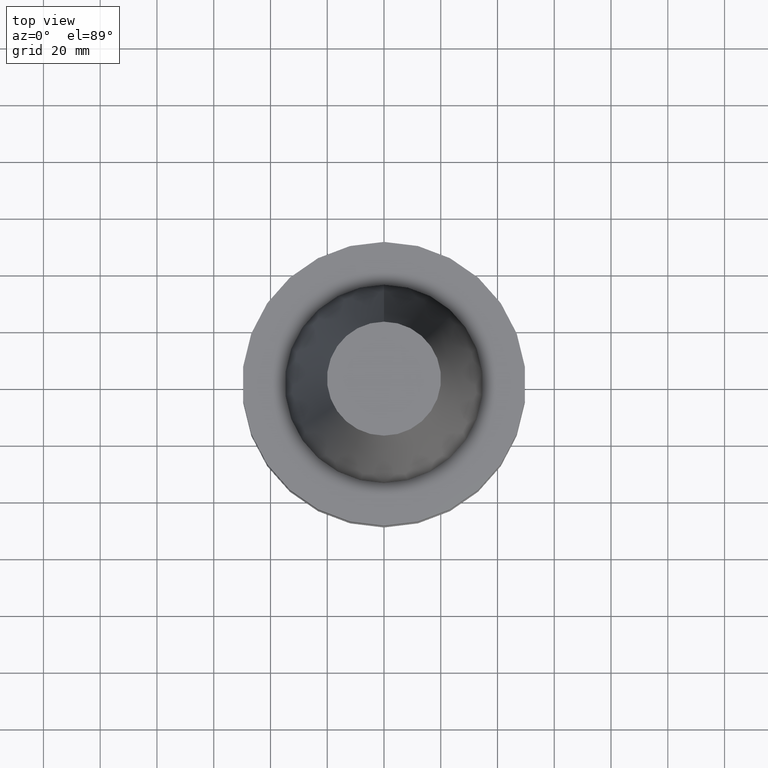
[diagram: clean part render]
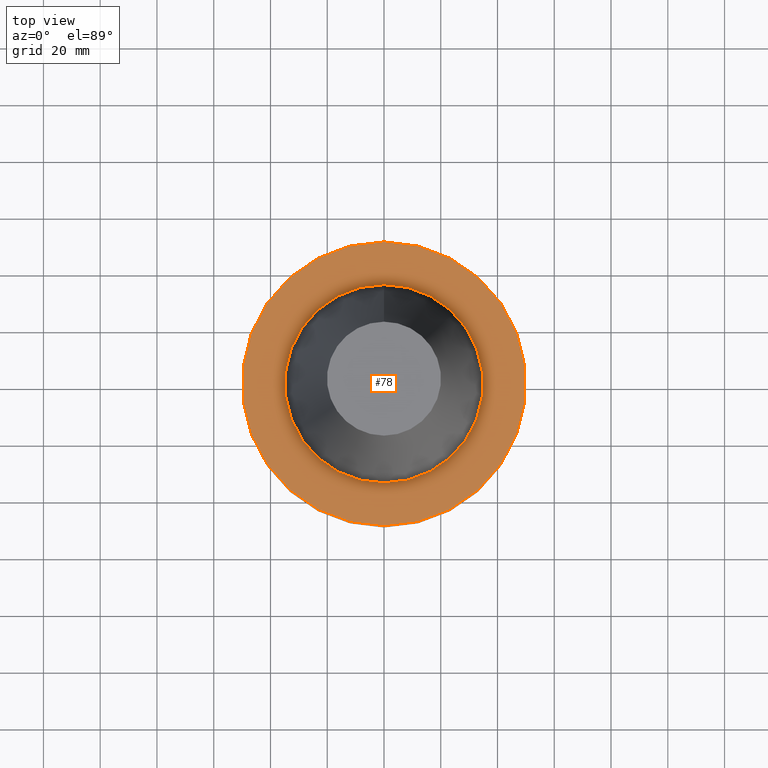
[diagram: same view with one face highlighted and labeled with its STEP entity id]
A machine part, top view. The second image highlights one B-rep face of the part: STEP entity #78.
In plain terms, the highlighted planar face has unit normal (-0, -0, 1).
Its self-contained STEP definition (entity closure, byte-faithful):
#78=ADVANCED_FACE('',(#99,#100),#101,.T.);
#99=FACE_OUTER_BOUND('',#142,.T.);
#100=FACE_BOUND('',#143,.T.);
#101=PLANE('',#144);
#142=EDGE_LOOP('',(#191));
#143=EDGE_LOOP('',(#192));
#144=AXIS2_PLACEMENT_3D('',#193,#194,#195);
#191=ORIENTED_EDGE('',*,*,#253,.F.);
#192=ORIENTED_EDGE('',*,*,#252,.T.);
#193=CARTESIAN_POINT('',(9.18485099360491E-017,42.4625,-1.49999999999996));
#194=DIRECTION('',(-6.12323399573677E-017,-4.26140557437139E-015,1.0));
#195=DIRECTION('',(2.65762987556899E-031,-1.0,-4.26140557437139E-015));
#252=EDGE_CURVE('',#268,#268,#269,.T.);
#253=EDGE_CURVE('',#270,#270,#271,.T.);
#268=VERTEX_POINT('',#296);
#269=CIRCLE('',#297,34.9250000000001);
#270=VERTEX_POINT('',#298);
#271=CIRCLE('',#299,50.0);
#296=CARTESIAN_POINT('',(9.18485099360511E-017,34.9250000000001,-1.5));
#297=AXIS2_PLACEMENT_3D('',#326,#327,#328);
#298=CARTESIAN_POINT('',(9.18485099360471E-017,50.0,-1.49999999999993));
#299=AXIS2_PLACEMENT_3D('',#329,#330,#331);
#326=CARTESIAN_POINT('',(9.18485099360524E-017,-3.70116197847362E-014,-1.50000000000001));
#327=DIRECTION('',(6.12323399573677E-017,4.47533550436228E-016,-1.0));
#328=DIRECTION('',(-3.22306792334079E-032,1.0,4.47533550436228E-016));
#329=CARTESIAN_POINT('',(9.18485099360489E-017,-3.70116197847362E-014,-1.49999999999996));
#330=DIRECTION('',(6.12323399573677E-017,4.47533550436228E-016,-1.0));
#331=DIRECTION('',(-3.22306792334079E-032,1.0,4.47533550436228E-016));